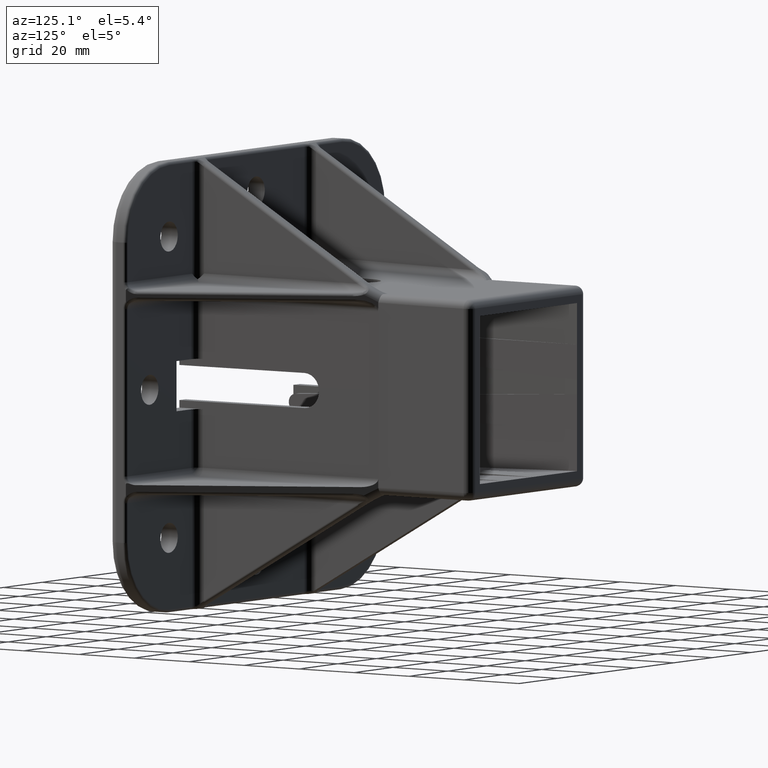
[diagram: clean part render]
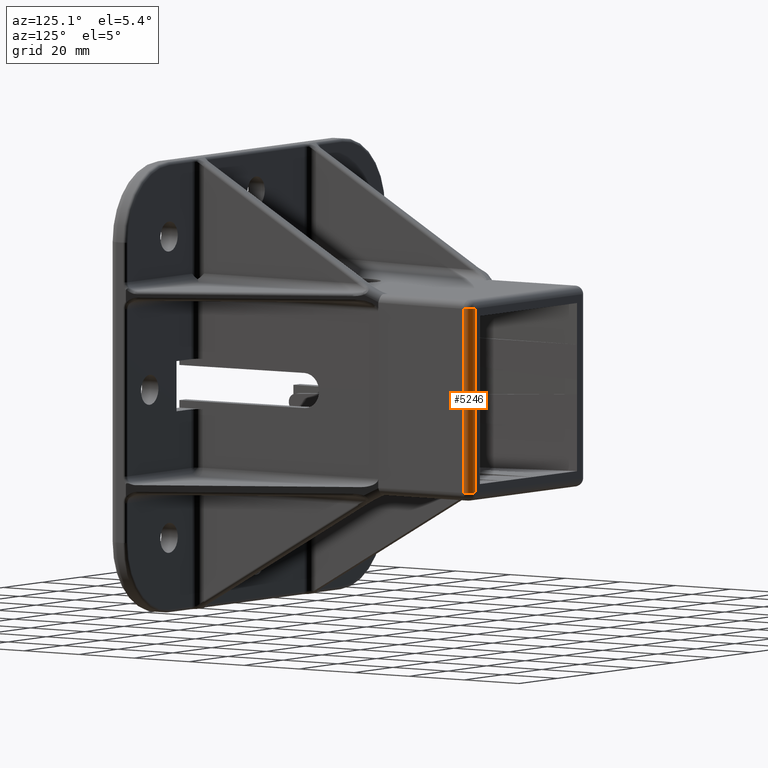
[diagram: same view with one face highlighted and labeled with its STEP entity id]
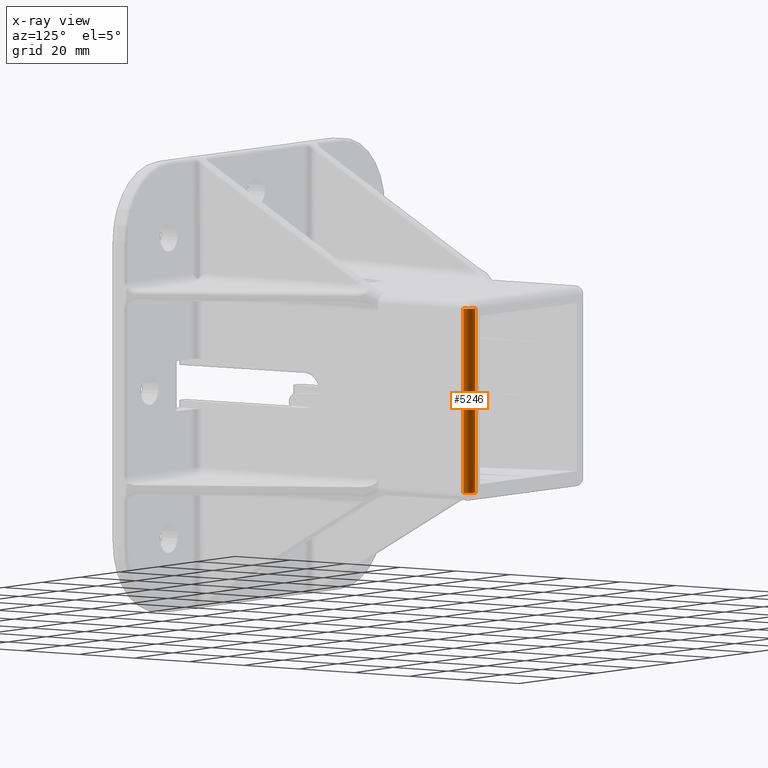
[diagram: x-ray of the same camera — body ghosted, the highlighted face saturated]
A machine part, auxiliary view. The second image highlights one B-rep face of the part: STEP entity #5246.
The next image is the same camera in x-ray: the body ghosted, the highlighted face saturated — about 0% of this face is hidden behind the body in this view.
In plain terms, the highlighted cylindrical surface (edge-blend (fillet) strip) has radius 2.5 mm, axis along (0, 0, 1).
Its self-contained STEP definition (entity closure, byte-faithful):
#541=LINE('',#8636,#981);
#554=LINE('',#8712,#994);
#981=VECTOR('',#6523,55.);
#994=VECTOR('',#6544,55.);
#1186=CYLINDRICAL_SURFACE('',#5700,2.5);
#1428=FACE_OUTER_BOUND('',#1748,.T.);
#1748=EDGE_LOOP('',(#4429,#4430,#4431,#4432));
#1999=CIRCLE('',#5701,2.5);
#2000=CIRCLE('',#5702,2.5);
#2519=VERTEX_POINT('',#8633);
#2520=VERTEX_POINT('',#8635);
#2530=VERTEX_POINT('',#8709);
#2531=VERTEX_POINT('',#8711);
#3053=EDGE_CURVE('',#2519,#2520,#541,.T.);
#3070=EDGE_CURVE('',#2530,#2531,#554,.T.);
#3295=EDGE_CURVE('',#2519,#2531,#1999,.T.);
#3296=EDGE_CURVE('',#2530,#2520,#2000,.T.);
#4429=ORIENTED_EDGE('',*,*,#3053,.F.);
#4430=ORIENTED_EDGE('',*,*,#3295,.T.);
#4431=ORIENTED_EDGE('',*,*,#3070,.F.);
#4432=ORIENTED_EDGE('',*,*,#3296,.T.);
#5246=ADVANCED_FACE('',(#1428),#1186,.T.);
#5700=AXIS2_PLACEMENT_3D('',#9201,#7011,#7012);
#5701=AXIS2_PLACEMENT_3D('',#9202,#7013,#7014);
#5702=AXIS2_PLACEMENT_3D('',#9203,#7015,#7016);
#6523=DIRECTION('',(0.,0.,1.));
#6544=DIRECTION('',(0.,0.,-1.));
#7011=DIRECTION('center_axis',(0.,0.,1.));
#7012=DIRECTION('ref_axis',(1.,0.,0.));
#7013=DIRECTION('center_axis',(0.,0.,1.));
#7014=DIRECTION('ref_axis',(1.,0.,0.));
#7015=DIRECTION('center_axis',(0.,0.,-1.));
#7016=DIRECTION('ref_axis',(1.,0.,0.));
#8633=CARTESIAN_POINT('',(30.,102.5,-27.5));
#8635=CARTESIAN_POINT('',(30.,102.5,27.5));
#8636=CARTESIAN_POINT('',(30.,102.5,30.));
#8709=CARTESIAN_POINT('',(27.5,105.,27.5));
#8711=CARTESIAN_POINT('',(27.5,105.,-27.5));
#8712=CARTESIAN_POINT('',(27.5,105.,-30.));
#9201=CARTESIAN_POINT('Origin',(27.5,102.5,0.));
#9202=CARTESIAN_POINT('Origin',(27.5,102.5,-27.5));
#9203=CARTESIAN_POINT('Origin',(27.5,102.5,27.5));